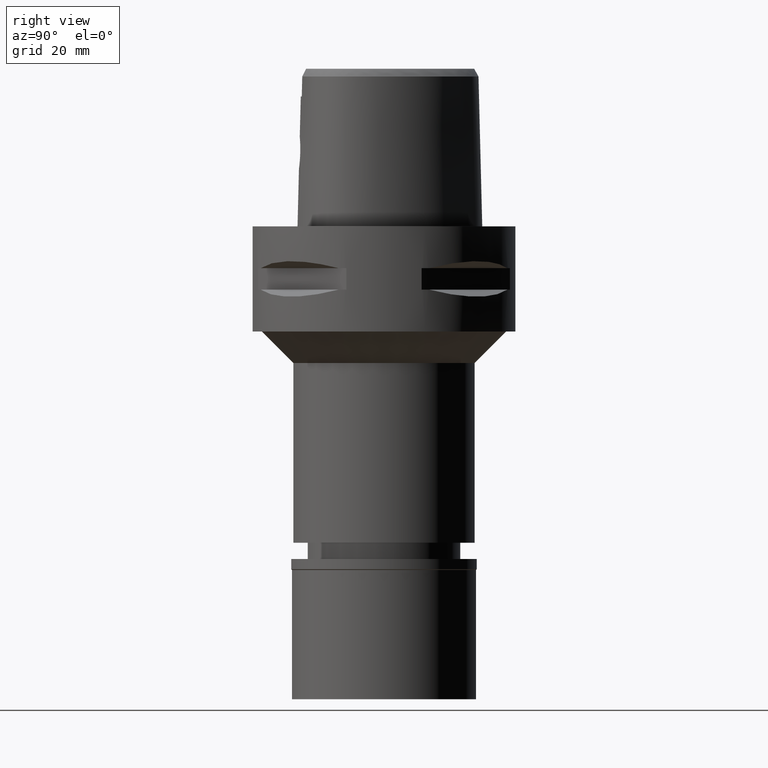
[diagram: clean part render]
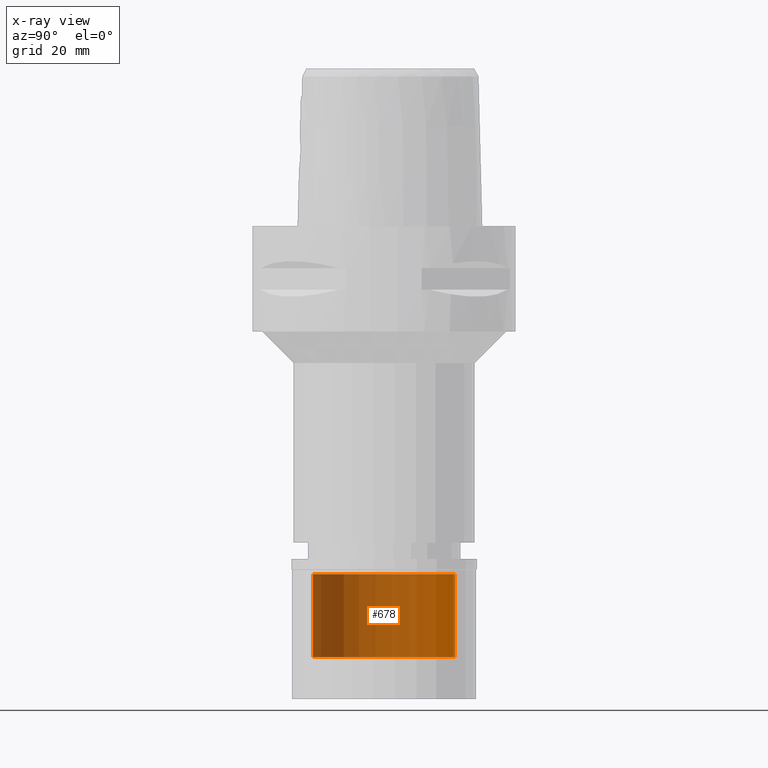
[diagram: x-ray — body ghosted, one internal face saturated and labeled with its STEP entity id]
A machine part, right view, then the same camera in x-ray: the body is ghosted and one INTERNAL B-rep face — a face not visible from any outside direction — is saturated and labeled: STEP entity #678.
In plain terms, the highlighted cylindrical surface (partial cylindrical patch) has radius 13.5 mm, axis along (0, 0, -1).
Its self-contained STEP definition (entity closure, byte-faithful):
#21 = CIRCLE ( 'NONE', #2674, 13.50000000000000000 ) ;
#429 = DIRECTION ( 'NONE',  ( 0.0000000000000000000, 0.0000000000000000000, 1.000000000000000000 ) ) ;
#437 = DIRECTION ( 'NONE',  ( 0.0000000000000000000, 1.000000000000000000, 0.0000000000000000000 ) ) ;
#678 = ADVANCED_FACE ( 'NONE', ( #2874 ), #1805, .F. ) ;
#773 = ORIENTED_EDGE ( 'NONE', *, *, #4605, .T. ) ;
#1124 = CARTESIAN_POINT ( 'NONE',  ( 0.0000000000000000000, 0.0000000000000000000, -2.899999999999999911 ) ) ;
#1178 = DIRECTION ( 'NONE',  ( 0.0000000000000000000, 0.0000000000000000000, -1.000000000000000000 ) ) ;
#1211 = ORIENTED_EDGE ( 'NONE', *, *, #2830, .F. ) ;
#1212 = CARTESIAN_POINT ( 'NONE',  ( 0.0000000000000000000, 13.50000000000000000, -18.70000000000000284 ) ) ;
#1238 = LINE ( 'NONE', #2695, #3686 ) ;
#1333 = EDGE_CURVE ( 'NONE', #2418, #2382, #2648, .T. ) ;
#1488 = DIRECTION ( 'NONE',  ( 0.0000000000000000000, -1.000000000000000000, 0.0000000000000000000 ) ) ;
#1516 = CARTESIAN_POINT ( 'NONE',  ( 0.0000000000000000000, 0.0000000000000000000, -18.70000000000000284 ) ) ;
#1805 = CYLINDRICAL_SURFACE ( 'NONE', #4651, 13.50000000000000000 ) ;
#1862 = CARTESIAN_POINT ( 'NONE',  ( 0.0000000000000000000, 0.0000000000000000000, 0.0000000000000000000 ) ) ;
#1931 = VECTOR ( 'NONE', #2986, 1000.000000000000000 ) ;
#1961 = DIRECTION ( 'NONE',  ( 0.0000000000000000000, -1.000000000000000000, 0.0000000000000000000 ) ) ;
#1995 = ORIENTED_EDGE ( 'NONE', *, *, #3132, .T. ) ;
#1997 = EDGE_LOOP ( 'NONE', ( #773, #1211, #1995, #3719 ) ) ;
#2370 = CARTESIAN_POINT ( 'NONE',  ( 0.0000000000000000000, -13.50000000000000000, -2.899999999999999911 ) ) ;
#2382 = VERTEX_POINT ( 'NONE', #4171 ) ;
#2418 = VERTEX_POINT ( 'NONE', #1212 ) ;
#2540 = AXIS2_PLACEMENT_3D ( 'NONE', #1124, #4102, #437 ) ;
#2648 = LINE ( 'NONE', #3364, #1931 ) ;
#2674 = AXIS2_PLACEMENT_3D ( 'NONE', #1516, #1178, #1961 ) ;
#2695 = CARTESIAN_POINT ( 'NONE',  ( 0.0000000000000000000, -13.50000000000000000, -18.70000000000000284 ) ) ;
#2830 = EDGE_CURVE ( 'NONE', #3478, #4345, #1238, .T. ) ;
#2874 = FACE_OUTER_BOUND ( 'NONE', #1997, .T. ) ;
#2927 = CIRCLE ( 'NONE', #2540, 13.50000000000000000 ) ;
#2986 = DIRECTION ( 'NONE',  ( 0.0000000000000000000, 0.0000000000000000000, 1.000000000000000000 ) ) ;
#3132 = EDGE_CURVE ( 'NONE', #3478, #2418, #21, .T. ) ;
#3364 = CARTESIAN_POINT ( 'NONE',  ( 0.0000000000000000000, 13.50000000000000000, -18.70000000000000284 ) ) ;
#3478 = VERTEX_POINT ( 'NONE', #4725 ) ;
#3686 = VECTOR ( 'NONE', #429, 1000.000000000000000 ) ;
#3719 = ORIENTED_EDGE ( 'NONE', *, *, #1333, .T. ) ;
#4102 = DIRECTION ( 'NONE',  ( 0.0000000000000000000, 0.0000000000000000000, 1.000000000000000000 ) ) ;
#4171 = CARTESIAN_POINT ( 'NONE',  ( 0.0000000000000000000, 13.50000000000000000, -2.899999999999999911 ) ) ;
#4345 = VERTEX_POINT ( 'NONE', #2370 ) ;
#4370 = DIRECTION ( 'NONE',  ( 0.0000000000000000000, 0.0000000000000000000, -1.000000000000000000 ) ) ;
#4605 = EDGE_CURVE ( 'NONE', #2382, #4345, #2927, .T. ) ;
#4651 = AXIS2_PLACEMENT_3D ( 'NONE', #1862, #4370, #1488 ) ;
#4725 = CARTESIAN_POINT ( 'NONE',  ( 0.0000000000000000000, -13.50000000000000000, -18.70000000000000284 ) ) ;